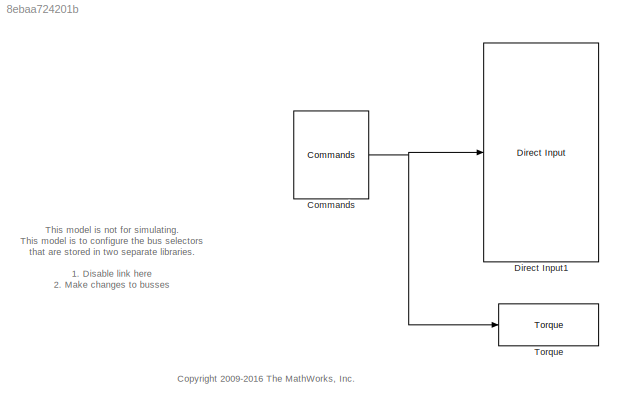
MODEL slx_8ebaa724201b
KIND model
CONFIG AbsTol = auto
CONFIG EnableMultiTasking = on
CONFIG FixedStep = auto
CONFIG MaxStep = auto
CONFIG MinStep = auto
CONFIG RelTol = 1e-3
CONFIG SampleTimeConstraint = Unconstrained
CONFIG Solver = ode45
CONFIG SolverName = ode45
CONFIG StartTime = 0.0
CONFIG StopTime = 10.0
BLOCK [Reference] Commands  REF=Turbine_Input_Lib/Commands
  Ports = [0, 1]
  SourceBlock = Turbine_Input_Lib/Commands
BLOCK [Reference] Direct Input1  REF=Main_Controller_Lib/Direct Input
  Ports = [1, 0, 0, 0, 0, 0, 4]
  SourceBlock = Main_Controller_Lib/Direct Input
BLOCK [Reference] Torque  REF=Wind_Lib/Torque
  Ports = [1, 0, 0, 0, 0, 0, 3]
  SourceBlock = Wind_Lib/Torque
ANNOTATION (root): <copyright redacted>
ANNOTATION (root): This model is not for simulating. This model is to configure the bus selectors that are stored in two separate libraries. 1. Disable link here 2. Make changes to busses 3. Update diagram 4. Restore Link, and UPDATE LIBRARY
NET Commands:1 -> Direct Input1:1, Torque:1
note: NET lines group one-source signal fan-out (src -> all destinations, sorted); 1:1 wires keep LINE
